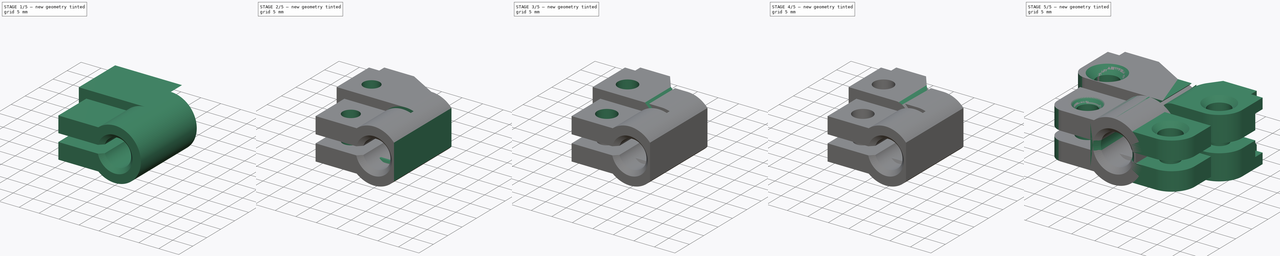
[diagram: build sequence overview — one tinted view per stage of 5, left to right]
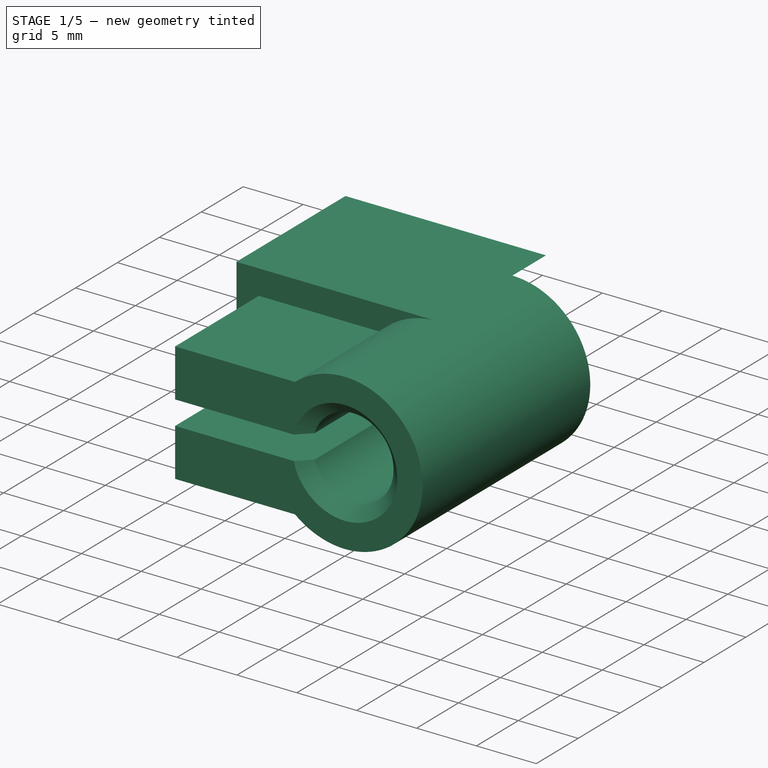
[diagram: stage 1 of 5 — iso view after this stage's code; geometry added in this stage tinted green]
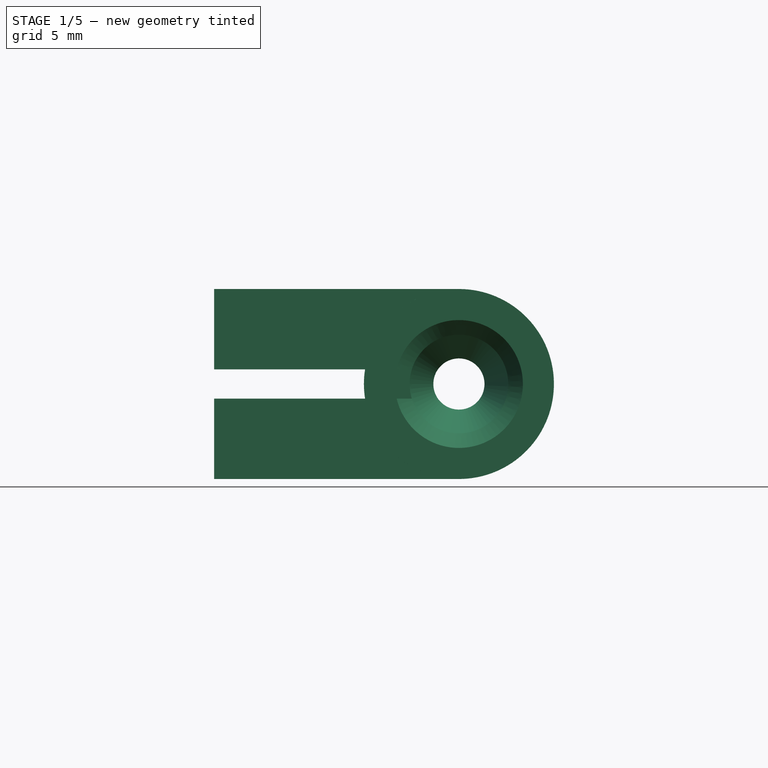
[diagram: stage 1 of 5 — front view after this stage's code; geometry added in this stage tinted green]
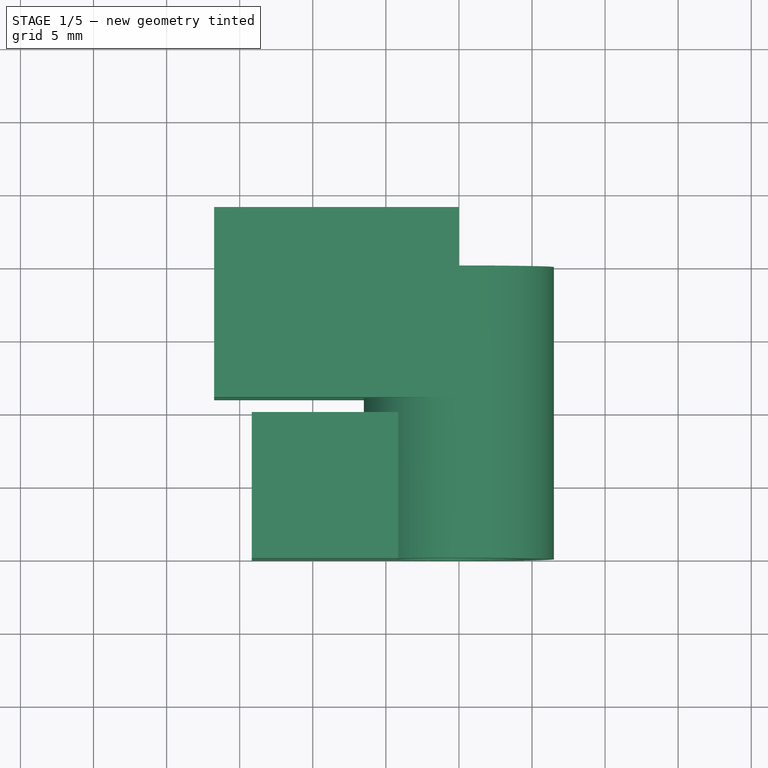
[diagram: stage 1 of 5 — top view after this stage's code; geometry added in this stage tinted green]
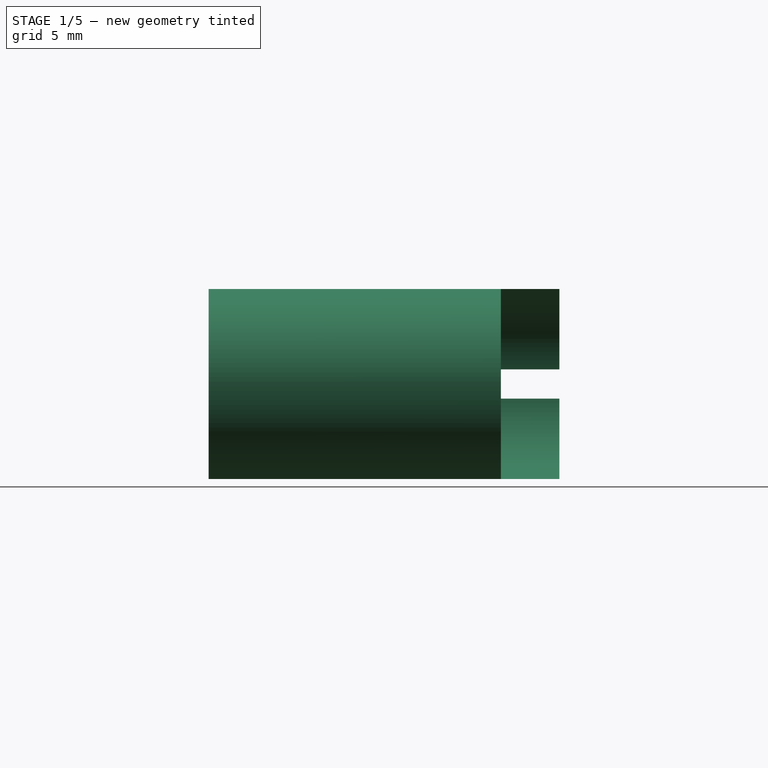
[diagram: stage 1 of 5 — right view after this stage's code; geometry added in this stage tinted green]
FCSTD DOCUMENT  (FreeCAD 0.17R13662 (Git))
Label: idler_tube_clamp_right
License: CreativeCommons Attribution-ShareAlike
LicenseURL: http://creativecommons.org/licenses/by-sa/4.0/
objects: Sketcher::SketchObject×14, PartDesign::Pocket×10, PartDesign::Fillet×4, PartDesign::Pad×3, Part::FeaturePython×1, PartDesign::Revolution×1, PartDesign::Chamfer×1, PartDesign::Body×1, Part::Mirroring×1
note: 50 computed .brp shape members not serialized (recipe doc carries the construction recipe); baked Part::Feature solids carry a one-line shape summary decoded from their .brp

FEATURE [Sketcher::SketchObject] Sketch
  MapMode = 5
  Support = -> [XY_Plane]
  sketch-geometry (6):
    g0: LineSegment StartX=-1.75 StartY=20 StartZ=0 EndX=-3.375 EndY=13 EndZ=0
    g1: LineSegment StartX=-3.375 StartY=13 StartZ=0 EndX=-3.375 EndY=1 EndZ=0
    g2: LineSegment StartX=-3.375 StartY=1 StartZ=0 EndX=-4.375 EndY=0 EndZ=0
    g3: LineSegment StartX=-4.375 StartY=0 StartZ=0 EndX=-6.5 EndY=0 EndZ=0
    g4: LineSegment StartX=-6.5 StartY=0 StartZ=0 EndX=-6.5 EndY=20 EndZ=0
    g5: LineSegment StartX=-6.5 StartY=20 StartZ=0 EndX=-1.75 EndY=20 EndZ=0
  constraints (18):
    c: Coincident(g0,g1)
    c: Coincident(g1,g2)
    c: Coincident(g2,g3)
    c: Coincident(g3,g4)
    c: Coincident(g4,g5)
    c: Coincident(g0,g5)
    c: PointOnObject(g2,g-1)
    c: Horizontal(g3)
    c: Vertical(g4)
    c: DistanceX(g3) = -6.5
    c: Horizontal(g5)
    c: Vertical(g1)
    c: DistanceY(g2,g2) = 1
    c: DistanceX(g3,g3) = 2.125
    c: DistanceX(g2,g2) = 1
    c: DistanceY(g1,g1) = 12
    c: DistanceY(g0) = 20
    c: DistanceX(g5,g5) = 4.75
FEATURE [PartDesign::Revolution] Revolution
  Angle = 360
  Axis = (0,1,0)
  Base = (0,0,0)
  Profile = -> Sketch
  ReferenceAxis = -> Sketch [V_Axis]
FEATURE [Sketcher::SketchObject] Sketch001
  MapMode = 5
  Placement = pos=(0,0,0) rot=(1,0,0;1.5708rad)
  Support = -> [Revolution]
  sketch-geometry (4):
    g0: LineSegment StartX=-6.75 StartY=1 StartZ=0 EndX=0 EndY=1 EndZ=0
    g1: LineSegment StartX=0 StartY=1 StartZ=0 EndX=0 EndY=-1 EndZ=0
    g2: LineSegment StartX=0 StartY=-1 StartZ=0 EndX=-6.75 EndY=-1 EndZ=0
    g3: LineSegment StartX=-6.75 StartY=-1 StartZ=0 EndX=-6.75 EndY=1 EndZ=0
  constraints (12):
    c: Coincident(g0,g1)
    c: Coincident(g1,g2)
    c: Coincident(g2,g3)
    c: Coincident(g3,g0)
    c: Horizontal(g0)
    c: Horizontal(g2)
    c: Vertical(g1)
    c: Vertical(g3)
    c: PointOnObject(g1,g-2)
    c: DistanceY(g1) = -1
    c: DistanceY(g1,g1) = 2
    c: DistanceX(g0,g0) = 6.75
FEATURE [PartDesign::Pocket] Pocket
  BaseFeature = -> Revolution
  Length = 10
  Length2 = 100
  Profile = -> Sketch001
  Type = 0
FEATURE [Sketcher::SketchObject] Sketch002
  ExternalGeometry = -> [Pocket]
  MapMode = 5
  Placement = pos=(0,0,0) rot=(1,0,0;1.5708rad)
  Support = -> [Pocket]
  sketch-geometry (8):
    g0: LineSegment StartX=-6.42262 StartY=1 StartZ=0 EndX=-14.1726 EndY=1 EndZ=0
    g1: LineSegment StartX=-14.1726 StartY=1 StartZ=0 EndX=-14.1726 EndY=5 EndZ=0
    g2: LineSegment StartX=-14.1726 StartY=5 StartZ=0 EndX=-4.15331 EndY=5 EndZ=0
    g3: LineSegment StartX=-6.42262 StartY=-1 StartZ=0 EndX=-14.1726 EndY=-1 EndZ=0
    g4: LineSegment StartX=-14.1726 StartY=-1 StartZ=0 EndX=-14.1726 EndY=-5 EndZ=0
    g5: LineSegment StartX=-14.1726 StartY=-5 StartZ=0 EndX=-4.15331 EndY=-5 EndZ=0
    g6: ArcOfCircle CenterX=0 CenterY=0 CenterZ=0 NormalX=0 NormalY=0 NormalZ=1 AngleXU=0 Radius=6.5 StartAngle=2.26396 EndAngle=2.98713
    g7: ArcOfCircle CenterX=0 CenterY=0 CenterZ=0 NormalX=0 NormalY=0 NormalZ=1 AngleXU=0 Radius=6.5 StartAngle=3.29605 EndAngle=4.01923
  constraints (25):
    c: Coincident(g0,g1)
    c: Coincident(g1,g2)
    c: Coincident(g3,g4)
    c: Coincident(g4,g5)
    c: Coincident(g3,g-3)
    c: Coincident(g0,g-3)
    c: Horizontal(g0)
    c: Horizontal(g3)
    c: Horizontal(g5)
    c: Horizontal(g2)
    c: PointOnObject(g5,g-3)
    c: PointOnObject(g2,g-3)
    c: Coincident(g5,g7)
    c: Coincident(g3,g7)
    c: Coincident(g0,g6)
    c: Coincident(g2,g6)
    c: Coincident(g6,g7)
    c: Coincident(g6,g-3)
    c: Coincident(g6,g-1)
    c: DistanceX(g0,g0) = 7.75
    c: Equal(g3,g0)
    c: DistanceY(g1,g1) = 4
    c: Vertical(g4)
    c: Equal(g4,g1)
    c: DistanceY(g4,g4) = 4
FEATURE [PartDesign::Pad] Pad
  BaseFeature = -> Pocket
  Length = 10
  Length2 = 100
  Profile = -> Sketch002
  Reversed = true
  Type = 0
FEATURE [Sketcher::SketchObject] Sketch003
  ExternalGeometry = -> [Pad]
  MapMode = 5
  Placement = pos=(0,20,0) rot=(0,0.707107,0.707107;3.14159rad)
  Support = -> [Pad]
  sketch-geometry (8):
    g0: LineSegment StartX=0 StartY=6.5 StartZ=0 EndX=16.75 EndY=6.5 EndZ=0
    g1: LineSegment StartX=16.75 StartY=6.5 StartZ=0 EndX=16.75 EndY=1 EndZ=0
    g2: LineSegment StartX=16.75 StartY=1 StartZ=0 EndX=6.42262 EndY=1 EndZ=0
    g3: LineSegment StartX=16.75 StartY=-1 StartZ=0 EndX=6.42262 EndY=-1 EndZ=0
    g4: LineSegment StartX=0 StartY=-6.5 StartZ=0 EndX=16.75 EndY=-6.5 EndZ=0
    g5: LineSegment StartX=16.75 StartY=-6.5 StartZ=0 EndX=16.75 EndY=-1 EndZ=0
    g6: ArcOfCircle CenterX=0 CenterY=0 CenterZ=0 NormalX=0 NormalY=0 NormalZ=1 AngleXU=0 Radius=6.5 StartAngle=0.15446 EndAngle=1.5708
    g7: ArcOfCircle CenterX=0 CenterY=0 CenterZ=0 NormalX=0 NormalY=0 NormalZ=1 AngleXU=0 Radius=6.5 StartAngle=4.71239 EndAngle=6.12873
  constraints (26):
    c: Coincident(g0,g1)
    c: Coincident(g1,g2)
    c: Horizontal(g0)
    c: Horizontal(g2)
    c: Vertical(g1)
    c: Coincident(g4,g5)
    c: Coincident(g5,g3)
    c: Horizontal(g3)
    c: Horizontal(g4)
    c: Vertical(g5)
    c: PointOnObject(g4,g-3)
    c: PointOnObject(g4,g-2)
    c: PointOnObject(g0,g-3)
    c: PointOnObject(g0,g-2)
    c: Coincident(g6,g7)
    c: Coincident(g6,g-3)
    c: Coincident(g4,g7)
    c: Coincident(g0,g6)
    c: Coincident(g2,g6)
    c: Coincident(g3,g7)
    c: Equal(g7,g-3)
    c: Equal(g6,g-3)
    c: DistanceX(g0,g0) = 16.75
    c: Equal(g4,g0)
    c: DistanceY(g5,g5) = 5.5
    c: Equal(g1,g5)
FEATURE [PartDesign::Pad] Pad001
  BaseFeature = -> Pad
  Length = 4
  Length2 = 9
  Profile = -> Sketch003
  Type = 4
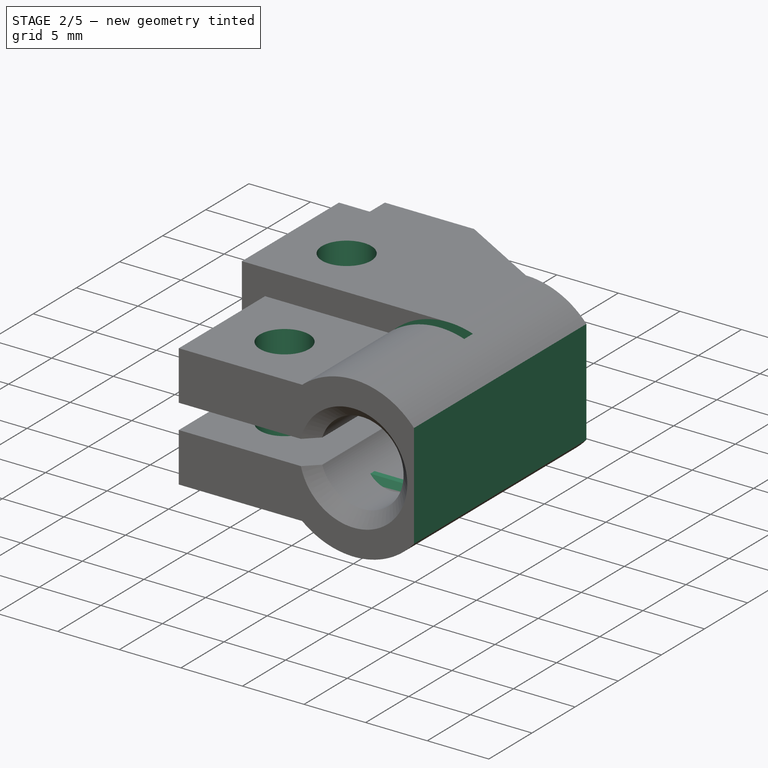
[diagram: stage 2 of 5 — iso view after this stage's code; geometry added in this stage tinted green]
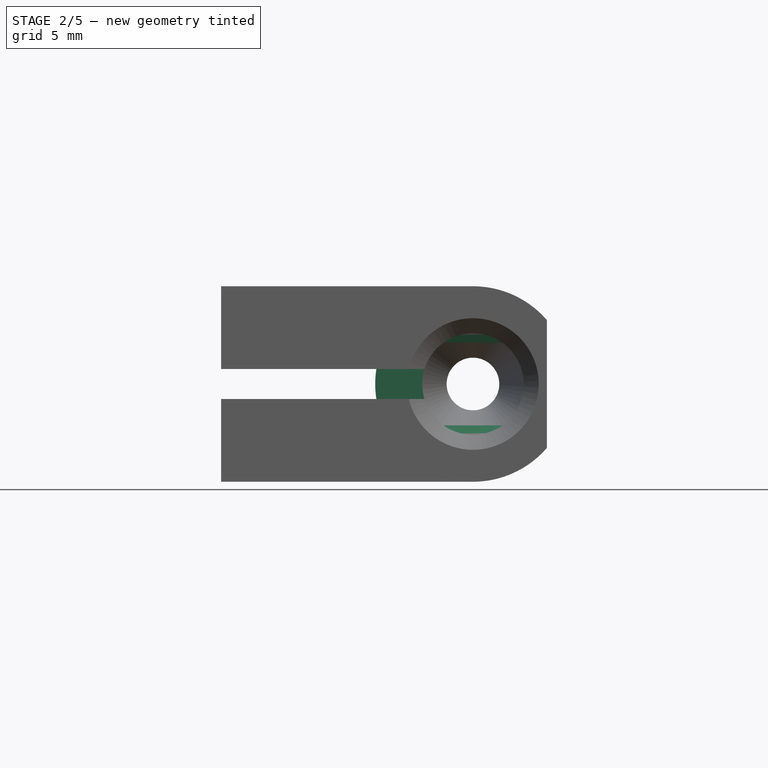
[diagram: stage 2 of 5 — front view after this stage's code; geometry added in this stage tinted green]
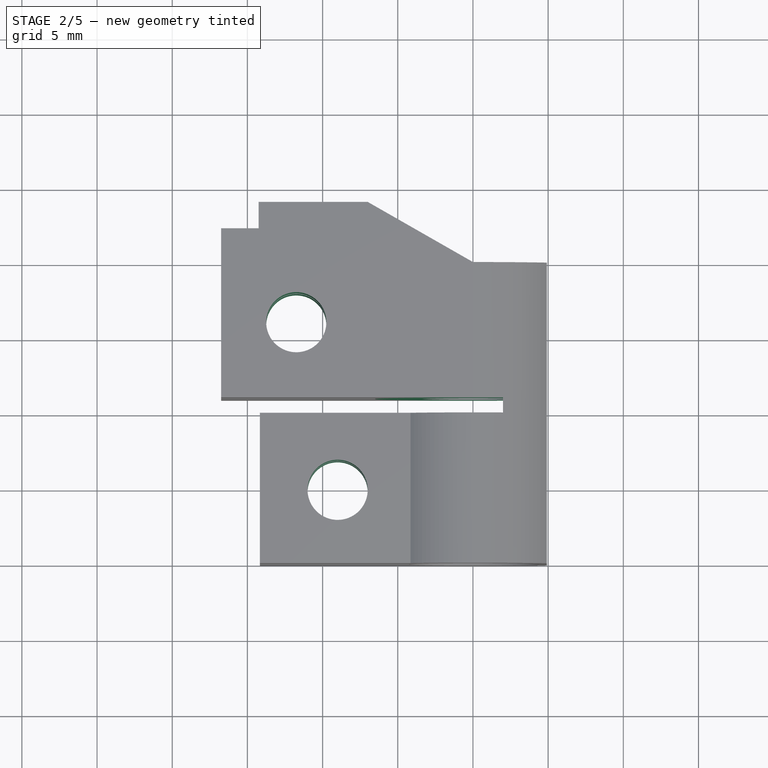
[diagram: stage 2 of 5 — top view after this stage's code; geometry added in this stage tinted green]
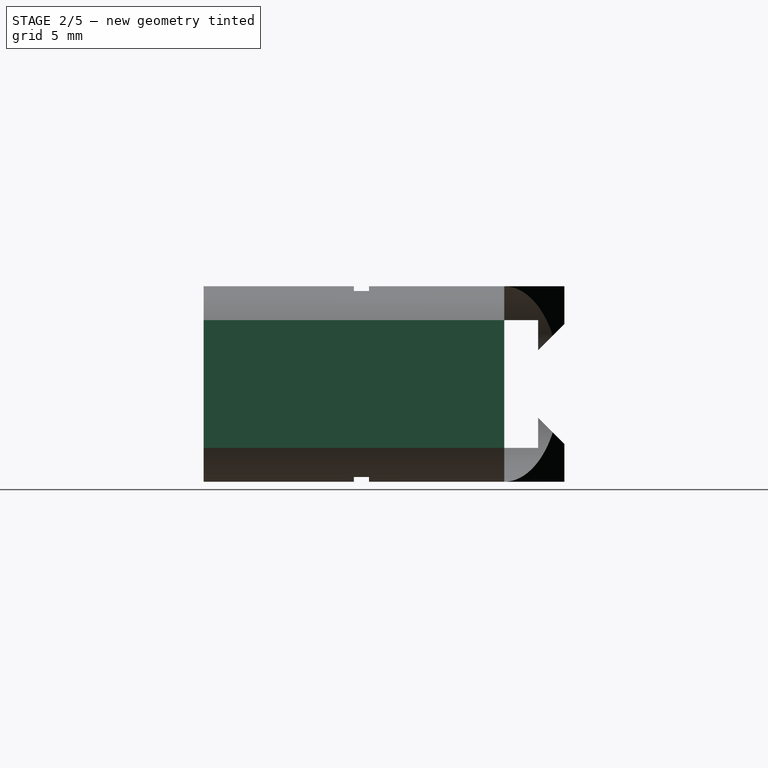
[diagram: stage 2 of 5 — right view after this stage's code; geometry added in this stage tinted green]
FEATURE [Sketcher::SketchObject] Sketch004
  MapMode = 5
  Placement = pos=(0,0,-6.5) rot=(1,0,0;3.14159rad)
  Support = -> [Pad001]
  sketch-geometry (13):
    g0: LineSegment StartX=0 StartY=-20 StartZ=0 EndX=-7 EndY=-24 EndZ=0
    g1: LineSegment StartX=-7 StartY=-24 StartZ=0 EndX=0 EndY=-24 EndZ=0
    g2: LineSegment StartX=0 StartY=-24 StartZ=0 EndX=0 EndY=-20 EndZ=0
    g3: Circle CenterX=-11.75 CenterY=-16 CenterZ=0 NormalX=0 NormalY=0 NormalZ=1 AngleXU=0 Radius=2
    g4: Circle CenterX=-9 CenterY=-4.875 CenterZ=0 NormalX=0 NormalY=0 NormalZ=1 AngleXU=0 Radius=2
    g5: LineSegment StartX=-16.75 StartY=-24 StartZ=0 EndX=-14.25 EndY=-24 EndZ=0
    g6: LineSegment StartX=-14.25 StartY=-24 StartZ=0 EndX=-14.25 EndY=-22.25 EndZ=0
    g7: LineSegment StartX=-14.25 StartY=-22.25 StartZ=0 EndX=-16.75 EndY=-22.25 EndZ=0
    g8: LineSegment StartX=-16.75 StartY=-22.25 StartZ=0 EndX=-16.75 EndY=-24 EndZ=0
    g9: LineSegment StartX=-6.5 StartY=-10 StartZ=0 EndX=2 EndY=-10 EndZ=0
    g10: LineSegment StartX=2 StartY=-10 StartZ=0 EndX=2 EndY=-11 EndZ=0
    g11: LineSegment StartX=2 StartY=-11 StartZ=0 EndX=-6.5 EndY=-11 EndZ=0
    g12: LineSegment StartX=-6.5 StartY=-11 StartZ=0 EndX=-6.5 EndY=-10 EndZ=0
  constraints (39):
    c: Coincident(g0,g1)
    c: Coincident(g1,g2)
    c: Coincident(g2,g0)
    c: Coincident(g5,g6)
    c: Coincident(g6,g7)
    c: Coincident(g7,g8)
    c: Coincident(g8,g5)
    c: Horizontal(g5)
    c: Horizontal(g7)
    c: Vertical(g6)
    c: Vertical(g8)
    c: DistanceX(g5) = -16.75
    c: DistanceY(g5) = -24
    c: DistanceY(g8,g8) = 1.75
    c: DistanceX(g7,g7) = 2.5
    c: DistanceX(g3) = -11.75
    c: DistanceY(g3) = -16
    c: DistanceX(g4) = -9
    c: DistanceY(g4) = -4.875
    c: Radius(g4) = 2
    c: Equal(g3,g4)
    c: PointOnObject(g0,g-2)
    c: Vertical(g2)
    c: Horizontal(g1)
    c: DistanceY(g0) = -20
    c: DistanceY(g2,g2) = 4
    c: DistanceX(g1,g1) = 7
    c: Coincident(g9,g10)
    c: Coincident(g10,g11)
    c: Coincident(g11,g12)
    c: Coincident(g12,g9)
    c: Horizontal(g9)
    c: Horizontal(g11)
    c: Vertical(g10)
    c: Vertical(g12)
    c: DistanceX(g10) = 2
    c: DistanceY(g10) = -11
    c: DistanceY(g12,g12) = 1
    c: DistanceX(g9,g9) = 8.5
FEATURE [PartDesign::Pocket] Pocket001
  BaseFeature = -> Pad001
  Length = 5
  Length2 = 100
  Profile = -> Sketch004
  Type = 1
FEATURE [Sketcher::SketchObject] Sketch005
  MapMode = 5
  Placement = pos=(-16.75,0,0) rot=(0.57735,-0.57735,-0.57735;2.0944rad)
  Support = -> [Pocket001]
  sketch-geometry (8):
    g0: LineSegment StartX=-24 StartY=4 StartZ=0 EndX=-22.25 EndY=2.25 EndZ=0
    g1: LineSegment StartX=-22.25 StartY=2.25 StartZ=0 EndX=-22.25 EndY=4.25 EndZ=0
    g2: LineSegment StartX=-22.25 StartY=4.25 StartZ=0 EndX=-20 EndY=4.25 EndZ=0
    g3: LineSegment StartX=-20 StartY=4.25 StartZ=0 EndX=-20 EndY=-4.25 EndZ=0
    g4: LineSegment StartX=-20 StartY=-4.25 StartZ=0 EndX=-22.25 EndY=-4.25 EndZ=0
    g5: LineSegment StartX=-22.25 StartY=-4.25 StartZ=0 EndX=-22.25 EndY=-2.25 EndZ=0
    g6: LineSegment StartX=-22.25 StartY=-2.25 StartZ=0 EndX=-24 EndY=-4 EndZ=0
    g7: LineSegment StartX=-24 StartY=-4 StartZ=0 EndX=-24 EndY=4 EndZ=0
  constraints (24):
    c: Coincident(g0,g1)
    c: Coincident(g1,g2)
    c: Coincident(g2,g3)
    c: Coincident(g3,g4)
    c: Coincident(g4,g5)
    c: Coincident(g5,g6)
    c: Coincident(g6,g7)
    c: Coincident(g0,g7)
    c: Vertical(g7)
    c: Vertical(g1)
    c: Vertical(g3)
    c: Vertical(g5)
    c: Horizontal(g4)
    c: Horizontal(g2)
    c: Angle(g6) = -2.35619
    c: Angle(g0) = -0.785398
    c: DistanceX(g2) = -20
    c: DistanceY(g2) = 4.25
    c: DistanceX(g2,g2) = 2.25
    c: Equal(g1,g5)
    c: Equal(g4,g2)
    c: DistanceY(g1,g1) = 2
    c: DistanceY(g3) = -4.25
    c: DistanceX(g6,g6) = 1.75
FEATURE [PartDesign::Pocket] Pocket002
  BaseFeature = -> Pocket001
  Length = 5
  Length2 = 100
  Profile = -> Sketch005
  Type = 1
FEATURE [Sketcher::SketchObject] Sketch006
  ExternalGeometry = -> [Pocket002]
  MapMode = 5
  Placement = pos=(0,0,0) rot=(1,0,0;1.5708rad)
  Support = -> [Pocket002]
  sketch-geometry (4):
    g0: LineSegment StartX=4.91808 StartY=4.25 StartZ=0 EndX=6.5 EndY=4.25 EndZ=0
    g1: LineSegment StartX=6.5 StartY=4.25 StartZ=0 EndX=6.5 EndY=-4.25 EndZ=0
    g2: LineSegment StartX=6.5 StartY=-4.25 StartZ=0 EndX=4.91808 EndY=-4.25 EndZ=0
    g3: LineSegment StartX=4.91808 StartY=-4.25 StartZ=0 EndX=4.91808 EndY=4.25 EndZ=0
  constraints (12):
    c: Coincident(g0,g1)
    c: Coincident(g1,g2)
    c: Coincident(g2,g3)
    c: Coincident(g3,g0)
    c: Horizontal(g0)
    c: Horizontal(g2)
    c: Vertical(g1)
    c: Vertical(g3)
    c: PointOnObject(g2,g-3)
    c: PointOnObject(g0,g-3)
    c: DistanceY(g3,g3) = 8.5
    c: Tangent(g-3,g1)
FEATURE [PartDesign::Pocket] Pocket003
  BaseFeature = -> Pocket002
  Length = 5
  Length2 = 100
  Profile = -> Sketch006
  Type = 1
FEATURE [Sketcher::SketchObject] Sketch007
  MapMode = 5
  Placement = pos=(4.91808,0,0) rot=(0.57735,0.57735,0.57735;2.0944rad)
  Support = -> [Pocket003]
  sketch-geometry (16):
    g0: LineSegment StartX=2 StartY=4.25 StartZ=0 EndX=4 EndY=4.25 EndZ=0
    g1: LineSegment StartX=4 StartY=4.25 StartZ=0 EndX=3.25 EndY=2.75 EndZ=0
    g2: LineSegment StartX=3.25 StartY=2.75 StartZ=0 EndX=2.75 EndY=2.75 EndZ=0
    g3: LineSegment StartX=2.75 StartY=2.75 StartZ=0 EndX=2 EndY=4.25 EndZ=0
    g4: LineSegment StartX=6 StartY=4.25 StartZ=0 EndX=6.75 EndY=2.75 EndZ=0
    g5: LineSegment StartX=6.75 StartY=2.75 StartZ=0 EndX=7.25 EndY=2.75 EndZ=0
    g6: LineSegment StartX=7.25 StartY=2.75 StartZ=0 EndX=8 EndY=4.25 EndZ=0
    g7: LineSegment StartX=8 StartY=4.25 StartZ=0 EndX=6 EndY=4.25 EndZ=0
    g8: LineSegment StartX=4 StartY=-4.25 StartZ=0 EndX=4.75 EndY=-2.75 EndZ=0
    g9: LineSegment StartX=4.75 StartY=-2.75 StartZ=0 EndX=5.25 EndY=-2.75 EndZ=0
    g10: LineSegment StartX=5.25 StartY=-2.75 StartZ=0 EndX=6 EndY=-4.25 EndZ=0
    g11: LineSegment StartX=6 StartY=-4.25 StartZ=0 EndX=4 EndY=-4.25 EndZ=0
    g12: LineSegment [constr] StartX=4 StartY=4.25 StartZ=0 EndX=6 EndY=4.25 EndZ=0
    g13: LineSegment [constr] StartX=6 StartY=4.25 StartZ=0 EndX=6 EndY=-4.25 EndZ=0
    g14: LineSegment [constr] StartX=6 StartY=-4.25 StartZ=0 EndX=4 EndY=-4.25 EndZ=0
    g15: LineSegment [constr] StartX=4 StartY=-4.25 StartZ=0 EndX=4 EndY=4.25 EndZ=0
  constraints (45):
    c: Coincident(g0,g1)
    c: Coincident(g1,g2)
    c: Coincident(g2,g3)
    c: Coincident(g4,g5)
    c: Coincident(g5,g6)
    c: Coincident(g6,g7)
    c: Coincident(g7,g4)
    c: Coincident(g8,g9)
    c: Coincident(g9,g10)
    c: Coincident(g10,g11)
    c: Coincident(g8,g11)
    c: Coincident(g0,g3)
    c: Horizontal(g7)
    c: Horizontal(g0)
    c: Horizontal(g2)
    c: Horizontal(g5)
    c: Horizontal(g9)
    c: Horizontal(g11)
    c: Coincident(g12,g13)
    c: Coincident(g13,g14)
    c: Coincident(g14,g15)
    c: Coincident(g15,g12)
    c: Horizontal(g12)
    c: Horizontal(g14)
    c: Vertical(g13)
    c: Vertical(g15)
    c: Coincident(g10,g13)
    c: Coincident(g8,g14)
    c: Coincident(g4,g12)
    c: DistanceY(g0) = 4.25
    c: DistanceY(g8) = -4.25
    c: Equal(g0,g7)
    c: Equal(g7,g11)
    c: Equal(g9,g2)
    c: Equal(g2,g5)
    c: Equal(g4,g1)
    c: Equal(g1,g3)
    c: Equal(g3,g6)
    c: Equal(g6,g10)
    c: Equal(g10,g8)
    c: DistanceY(g8,g8) = 1.5
    c: DistanceX(g9,g9) = 0.5
    c: Coincident(g0,g12)
    c: DistanceX(g0) = 2
    c: DistanceX(g12,g12) = 2
FEATURE [PartDesign::Pad] Pad002
  BaseFeature = -> Pocket003
  Length = 10
  Length2 = 100
  Profile = -> Sketch007
  Reversed = true
  Type = 0
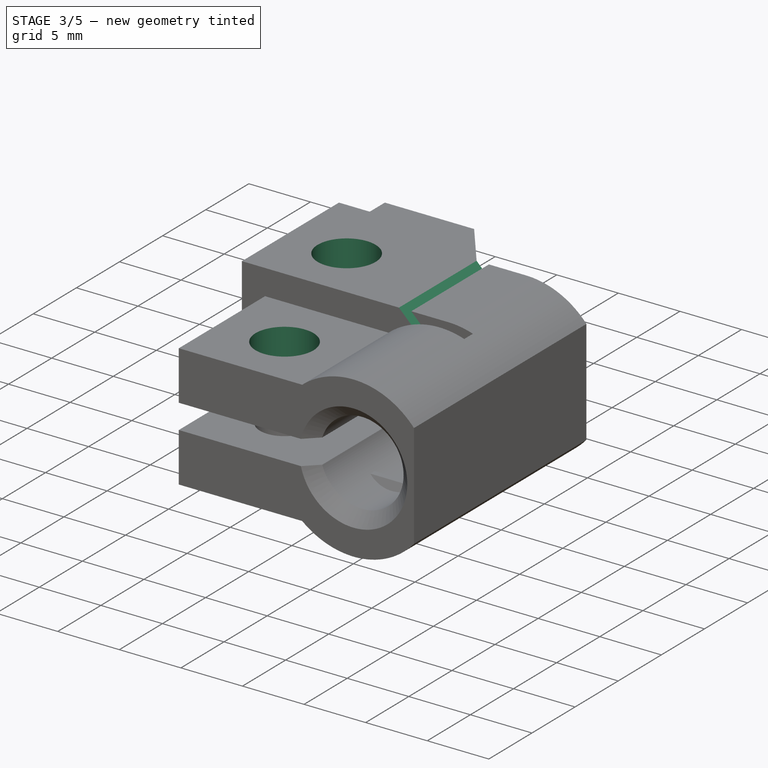
[diagram: stage 3 of 5 — iso view after this stage's code; geometry added in this stage tinted green]
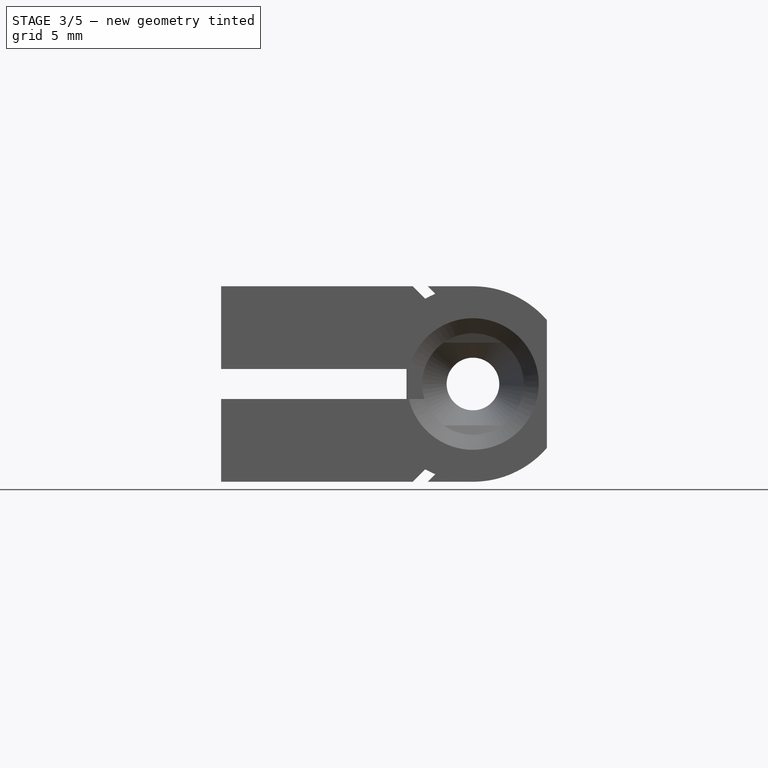
[diagram: stage 3 of 5 — front view after this stage's code; geometry added in this stage tinted green]
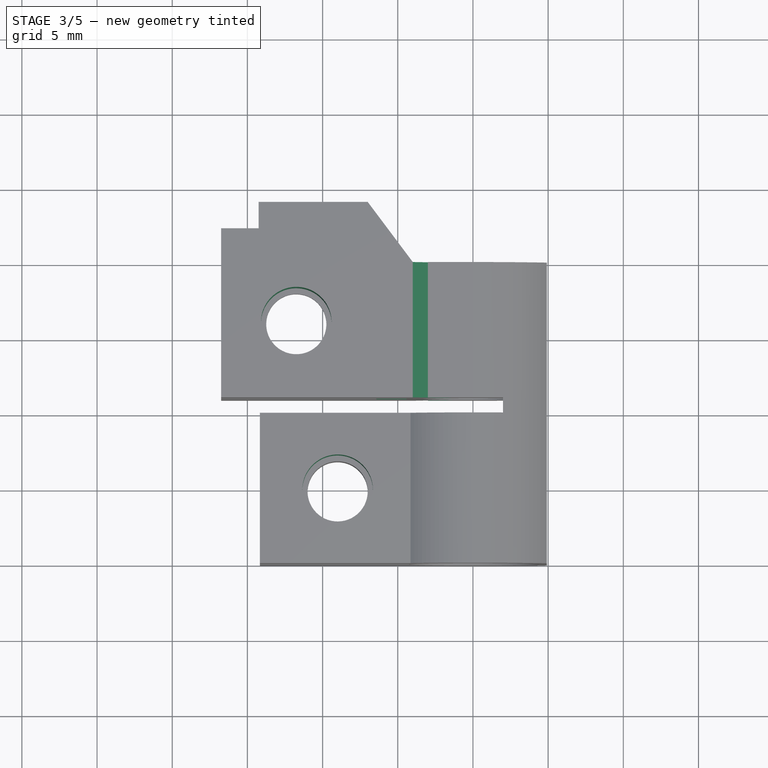
[diagram: stage 3 of 5 — top view after this stage's code; geometry added in this stage tinted green]
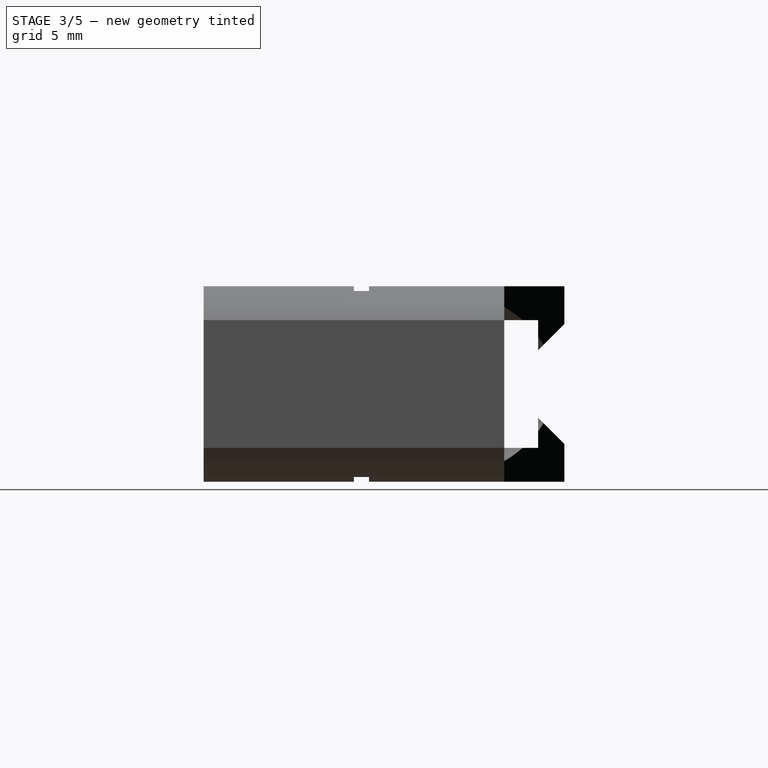
[diagram: stage 3 of 5 — right view after this stage's code; geometry added in this stage tinted green]
FEATURE [Sketcher::SketchObject] Sketch008
  ExternalGeometry = -> [Pad002]
  MapMode = 5
  Placement = pos=(0,0,5) rot=(0,0,1;0rad)
  Support = -> [Pad002]
  sketch-geometry (1):
    g0: Circle CenterX=-9 CenterY=4.875 CenterZ=0 NormalX=0 NormalY=0 NormalZ=1 AngleXU=0 Radius=2.35
  constraints (2):
    c: Coincident(g0,g-3)
    c: Radius(g0) = 2.35
FEATURE [PartDesign::Pocket] Pocket004
  BaseFeature = -> Pad002
  Length = 5
  Length2 = 100
  Profile = -> Sketch008
  Type = 0
FEATURE [Sketcher::SketchObject] Sketch009
  ExternalGeometry = -> [Pocket004]
  MapMode = 5
  Placement = pos=(0,0,6.5) rot=(0,0,1;0rad)
  Support = -> [Pocket004]
  sketch-geometry (1):
    g0: Circle CenterX=-11.75 CenterY=16 CenterZ=0 NormalX=0 NormalY=0 NormalZ=1 AngleXU=0 Radius=2.35
  constraints (2):
    c: Radius(g0) = 2.35
    c: Coincident(g0,g-3)
FEATURE [Sketcher::SketchObject] Sketch011
  ExternalGeometry = -> [Pocket001]
  MapMode = 5
  Placement = pos=(0,11,0) rot=(1,0,0;1.5708rad)
  sketch-geometry (14):
    g0: LineSegment StartX=-6.42262 StartY=1 StartZ=0 EndX=-4.42262 EndY=1 EndZ=0
    g1: LineSegment StartX=-4.42262 StartY=1 StartZ=0 EndX=-4.42262 EndY=-1 EndZ=0
    g2: LineSegment StartX=-4.42262 StartY=-1 StartZ=0 EndX=-6.42262 EndY=-1 EndZ=0
    g3: ArcOfCircle CenterX=0 CenterY=0 CenterZ=0 NormalX=0 NormalY=0 NormalZ=1 AngleXU=0 Radius=6.5 StartAngle=2.98713 EndAngle=3.29605
    g4: LineSegment [constr] StartX=3 StartY=0 StartZ=0 EndX=-3.5 EndY=6.5 EndZ=0
    g5: LineSegment [constr] StartX=3 StartY=0 StartZ=0 EndX=-3.5 EndY=-6.5 EndZ=0
    g6: LineSegment StartX=-4 StartY=6.5 StartZ=0 EndX=-1.80294 EndY=4.30294 EndZ=0
    g7: LineSegment StartX=-1.80294 StartY=4.30294 StartZ=0 EndX=-1.30294 EndY=4.80294 EndZ=0
    g8: LineSegment StartX=-1.30294 StartY=4.80294 StartZ=0 EndX=-3 EndY=6.5 EndZ=0
    g9: LineSegment StartX=-3 StartY=6.5 StartZ=0 EndX=-4 EndY=6.5 EndZ=0
    g10: LineSegment StartX=-1.80294 StartY=-4.30294 StartZ=0 EndX=-1.30294 EndY=-4.80294 EndZ=0
    g11: LineSegment StartX=-1.30294 StartY=-4.80294 StartZ=0 EndX=-3 EndY=-6.5 EndZ=0
    g12: LineSegment StartX=-3 StartY=-6.5 StartZ=0 EndX=-4 EndY=-6.5 EndZ=0
    g13: LineSegment StartX=-4 StartY=-6.5 StartZ=0 EndX=-1.80294 EndY=-4.30294 EndZ=0
  constraints (43):
    c: Coincident(g0,g1)
    c: Coincident(g1,g2)
    c: Horizontal(g0)
    c: Horizontal(g2)
    c: Vertical(g1)
    c: Coincident(g2,g-6)
    c: Coincident(g0,g-5)
    c: DistanceX(g0,g0) = 2
    c: Coincident(g3,g-3)
    c: Coincident(g0,g3)
    c: Coincident(g0,g-4)
    c: Coincident(g2,g3)
    c: Coincident(g4,g5)
    c: PointOnObject(g4,g-1)
    c: Coincident(g6,g7)
    c: Coincident(g7,g8)
    c: Coincident(g8,g9)
    c: Coincident(g10,g11)
    c: Coincident(g11,g12)
    c: Coincident(g12,g13)
    c: Coincident(g10,g13)
    c: Coincident(g6,g9)
    c: PointOnObject(g12,g-8)
    c: Horizontal(g12)
    c: Horizontal(g9)
    c: PointOnObject(g6,g-7)
    c: DistanceX(g4) = 3
    c: PointOnObject(g4,g9)
    c: PointOnObject(g5,g12)
    c: Angle(g5) = -2.35619
    c: Perpendicular(g5,g4)
    c: Perpendicular(g8,g7)
    c: Perpendicular(g4,g7)
    c: Symmetric(g7,g6,g4)
    c: Perpendicular(g5,g10)
    c: Symmetric(g10,g10,g5)
    c: Perpendicular(g10,g11)
    c: Parallel(g11,g13)
    c: Parallel(g6,g8)
    c: DistanceX(g9,g9) = 1
    c: Equal(g12,g9)
    c: Equal(g8,g11)
    c: Distance(g11) = 2.4
FEATURE [Sketcher::SketchObject] Sketch013
  MapMode = 5
  Placement = pos=(0,24,0) rot=(0,0.707107,0.707107;3.14159rad)
  sketch-geometry (10):
    g0: LineSegment StartX=5.6875 StartY=4.25 StartZ=0 EndX=7.6875 EndY=2.25 EndZ=0
    g1: LineSegment StartX=7.6875 StartY=2.25 StartZ=0 EndX=5.6875 EndY=2.25 EndZ=0
    g2: LineSegment StartX=5.6875 StartY=2.25 StartZ=0 EndX=5.6875 EndY=4.25 EndZ=0
    g3: LineSegment StartX=5.6875 StartY=-4.25 StartZ=0 EndX=5.6875 EndY=-2.25 EndZ=0
    g4: LineSegment StartX=5.6875 StartY=-2.25 StartZ=0 EndX=7.6875 EndY=-2.25 EndZ=0
    g5: LineSegment StartX=7.6875 StartY=-2.25 StartZ=0 EndX=5.6875 EndY=-4.25 EndZ=0
    g6: LineSegment [constr] StartX=5.6875 StartY=2.25 StartZ=0 EndX=7.6875 EndY=2.25 EndZ=0
    g7: LineSegment [constr] StartX=7.6875 StartY=2.25 StartZ=0 EndX=7.6875 EndY=-2.25 EndZ=0
    g8: LineSegment [constr] StartX=7.6875 StartY=-2.25 StartZ=0 EndX=5.6875 EndY=-2.25 EndZ=0
    g9: LineSegment [constr] StartX=5.6875 StartY=-2.25 StartZ=0 EndX=5.6875 EndY=2.25 EndZ=0
  constraints (30):
    c: Coincident(g0,g1)
    c: Coincident(g1,g2)
    c: Coincident(g3,g4)
    c: Coincident(g4,g5)
    c: Coincident(g3,g5)
    c: Coincident(g0,g2)
    c: Vertical(g2)
    c: Horizontal(g1)
    c: Vertical(g3)
    c: Angle(g5) = -2.35619
    c: Angle(g0) = -0.785398
    c: Coincident(g6,g7)
    c: Coincident(g7,g8)
    c: Coincident(g8,g9)
    c: Coincident(g9,g6)
    c: Horizontal(g6)
    c: Horizontal(g8)
    c: Vertical(g7)
    c: Vertical(g9)
    c: Coincident(g4,g7)
    c: Coincident(g1,g6)
    c: Coincident(g0,g6)
    c: Coincident(g3,g8)
    c: DistanceY(g3,g3) = 2
    c: Equal(g4,g1)
    c: Equal(g1,g2)
    c: Equal(g2,g3)
    c: DistanceX(g3) = 5.6875
    c: DistanceY(g3) = -4.25
    c: DistanceY(g7,g7) = 4.5
FEATURE [PartDesign::Pocket] Pocket005
  BaseFeature = -> Pocket004
  Length = 6
  Length2 = 100
  Profile = -> Sketch009
  Type = 0
FEATURE [Sketcher::SketchObject] Sketch010
  ExternalGeometry = -> [Pocket005]
  MapMode = 5
  Placement = pos=(0,0,-6.5) rot=(1,0,0;3.14159rad)
  Support = -> [Pocket005]
  sketch-geometry (1):
    g0: Circle CenterX=-11.75 CenterY=-16 CenterZ=0 NormalX=0 NormalY=0 NormalZ=1 AngleXU=0 Radius=3.5
  constraints (2):
    c: Radius(g0) = 3.5
    c: Coincident(g0,g-3)
FEATURE [PartDesign::Pocket] Pocket006
  BaseFeature = -> Pocket005
  Length = 4
  Length2 = 100
  Profile = -> Sketch010
  Type = 0
FEATURE [PartDesign::Pocket] Pocket007
  BaseFeature = -> Pocket006
  Length = 5
  Length2 = 100
  Profile = -> Sketch011
  Type = 1
FEATURE [Sketcher::SketchObject] Sketch012
  ExternalGeometry = -> [Pocket007]
  MapMode = 5
  Placement = pos=(0,0,-6.5) rot=(1,0,0;3.14159rad)
  sketch-geometry (3):
    g0: LineSegment StartX=0 StartY=-20 StartZ=0 EndX=-4 EndY=-20 EndZ=0
    g1: LineSegment StartX=-4 StartY=-20 StartZ=0 EndX=-7 EndY=-24 EndZ=0
    g2: LineSegment StartX=-7 StartY=-24 StartZ=0 EndX=0 EndY=-20 EndZ=0
  constraints (7):
    c: Coincident(g1,g2)
    c: Coincident(g0,g2)
    c: Coincident(g0,g1)
    c: Horizontal(g0)
    c: Coincident(g0,g-3)
    c: Coincident(g1,g-4)
    c: PointOnObject(g0,g-5)
FEATURE [PartDesign::Pocket] Pocket008
  BaseFeature = -> Pocket007
  Length = 5
  Length2 = 100
  Profile = -> Sketch012
  Type = 1
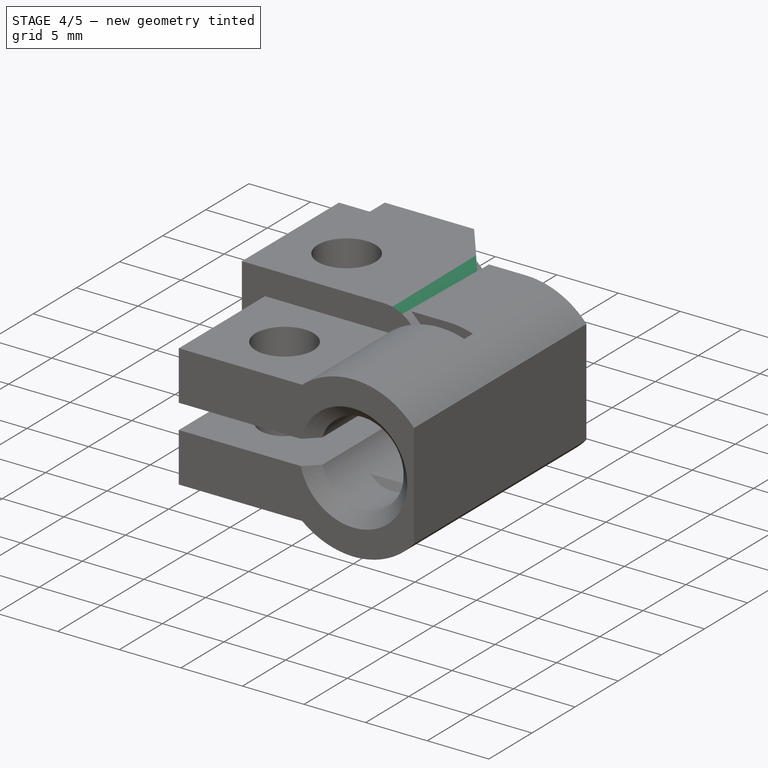
[diagram: stage 4 of 5 — iso view after this stage's code; geometry added in this stage tinted green]
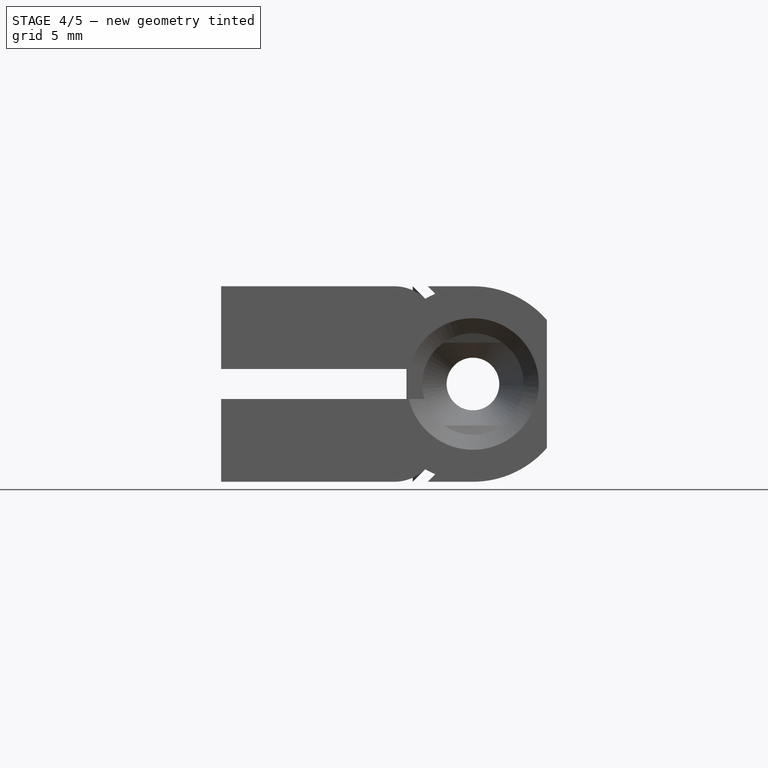
[diagram: stage 4 of 5 — front view after this stage's code; geometry added in this stage tinted green]
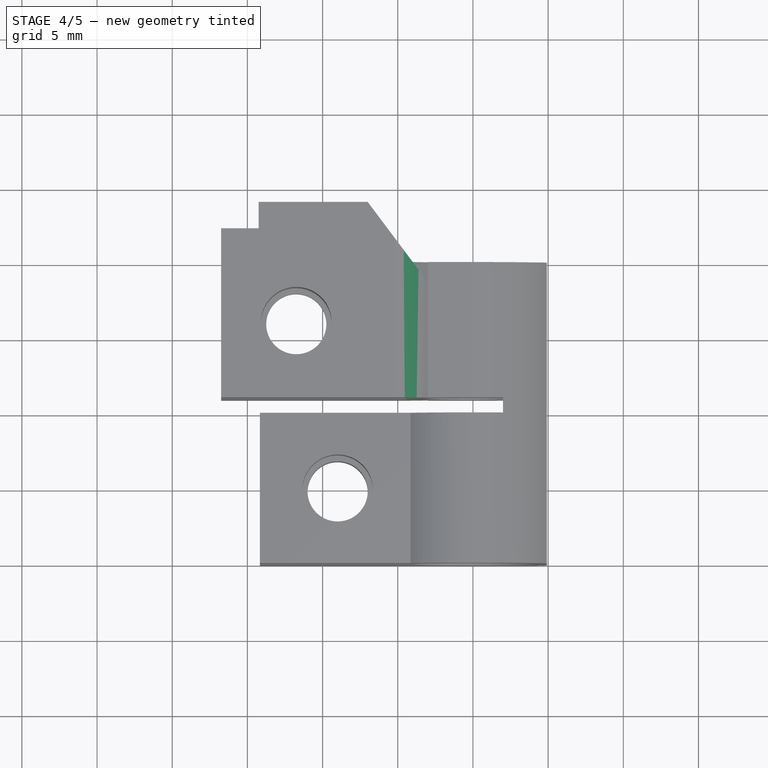
[diagram: stage 4 of 5 — top view after this stage's code; geometry added in this stage tinted green]
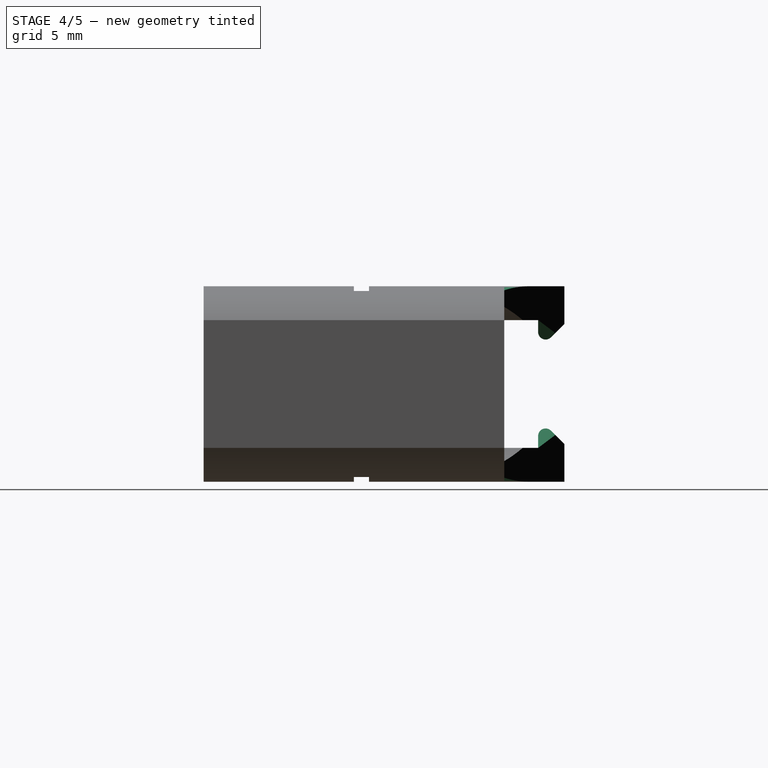
[diagram: stage 4 of 5 — right view after this stage's code; geometry added in this stage tinted green]
FEATURE [PartDesign::Pocket] Pocket009
  BaseFeature = -> Pocket008
  Length = 3
  Length2 = 100
  Profile = -> Sketch013
  Type = 0
FEATURE [PartDesign::Fillet] Fillet
  Base = -> Pocket009 [Edge130,Edge142]
  BaseFeature = -> Pocket009
  Radius = 0.7
FEATURE [PartDesign::Fillet] Fillet001
  Base = -> Fillet [Edge129,Edge13]
  BaseFeature = -> Fillet
  Radius = 3
FEATURE [PartDesign::Fillet] Fillet002
  Base = -> Fillet001 [Edge139,Edge264]
  BaseFeature = -> Fillet001
  Radius = 0.5
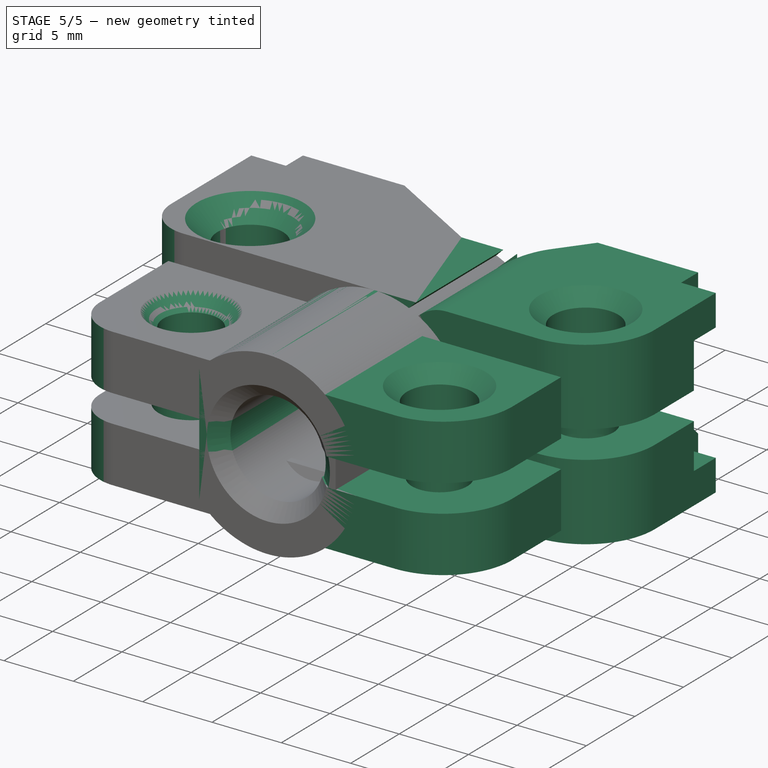
[diagram: stage 5 of 5 — iso view after this stage's code; geometry added in this stage tinted green]
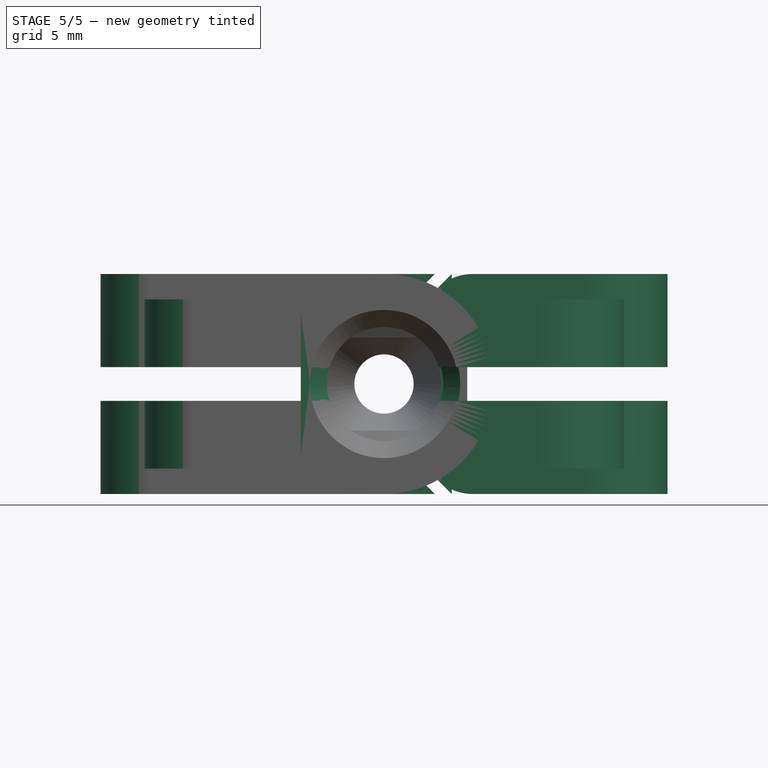
[diagram: stage 5 of 5 — front view after this stage's code; geometry added in this stage tinted green]
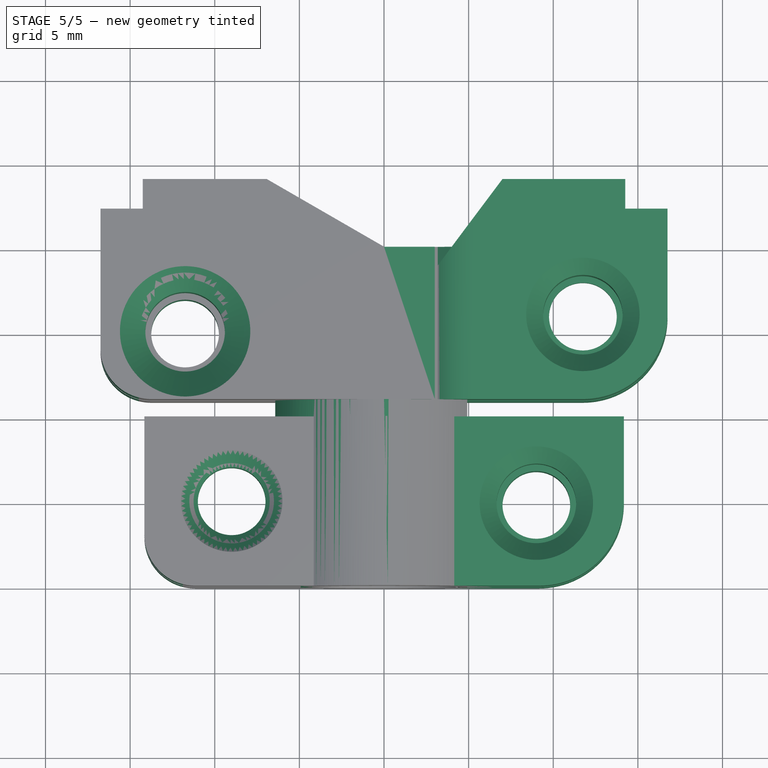
[diagram: stage 5 of 5 — top view after this stage's code; geometry added in this stage tinted green]
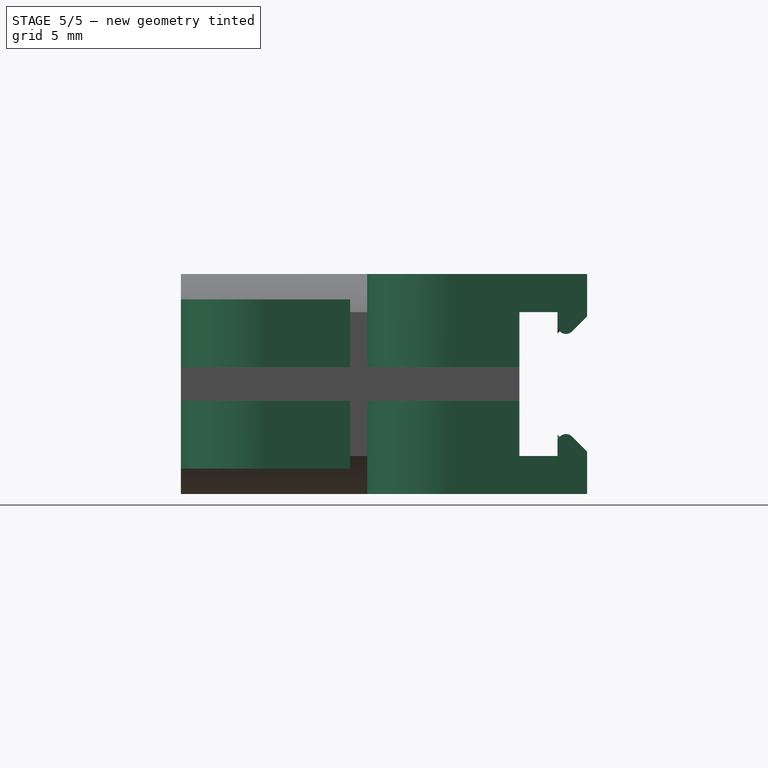
[diagram: stage 5 of 5 — right view after this stage's code; geometry added in this stage tinted green]
FEATURE [Part::FeaturePython] idler_clamp_right_01  # a2plus imported part (geometry in sourceFile) (typed FeaturePython)
  fixedPosition = true
  sourceFile = <userpath>/Projects/taz-quiver/production_parts/printed_parts/idler_clamp_bolt_side/idler_clamp_right.fcstd
  timeLastImport = 1.54526e+09
  updateColors = true
FEATURE [PartDesign::Fillet] Fillet003
  Base = -> Fillet002 [Edge78,Edge239,Edge248,Edge250]
  BaseFeature = -> Fillet002
  Radius = 5
FEATURE [PartDesign::Chamfer] Chamfer
  Base = -> Fillet003 [Edge243,Edge231]
  BaseFeature = -> Fillet003
  Size = 1
FEATURE [PartDesign::Body] Body
  Group = -> [Sketch,Revolution,Sketch001,Pocket,Sketch002,Pad,Sketch003,Pad001,Sketch004,Pocket001,Sketch005,Pocket002,Sketch006,Pocket003,Sketch007,Pad002,Sketch008,Pocket004,Sketch009,Sketch010,Sketch011,Sketch012,Sketch013,Pocket005,Pocket006,Pocket007,Pocket008,Pocket009,Fillet,Fillet001,Fillet002,Fillet003,Chamfer]
  Origin = -> Origin
  Tip = -> Chamfer
FEATURE [Part::Mirroring] Part__Mirroring  label="Chamfer (Mirror #1)"
  Base = (0,0,0)
  Normal = (1,0,0)
  Source = -> Chamfer
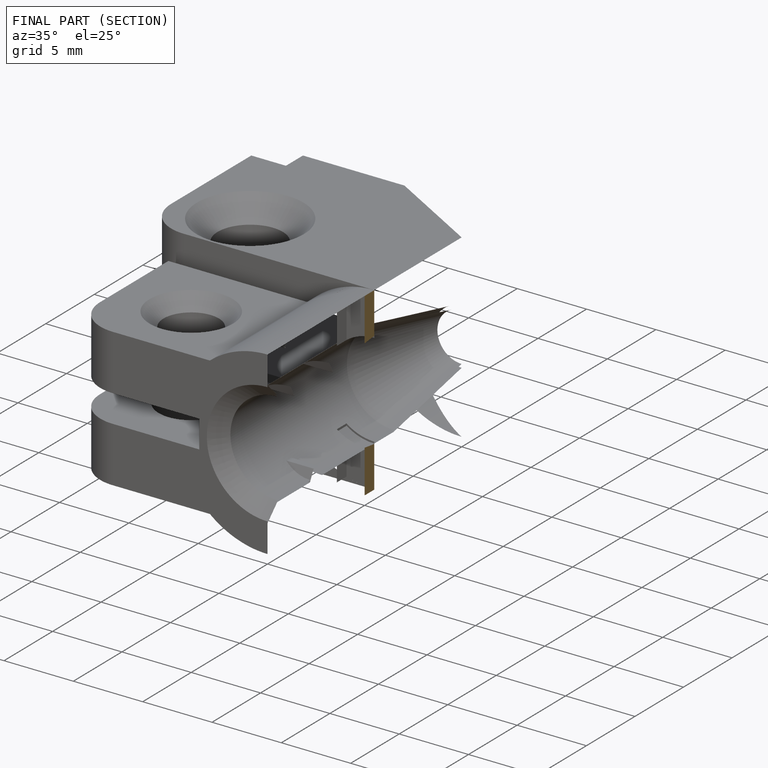
[diagram: finished part — half-section view (interior)]
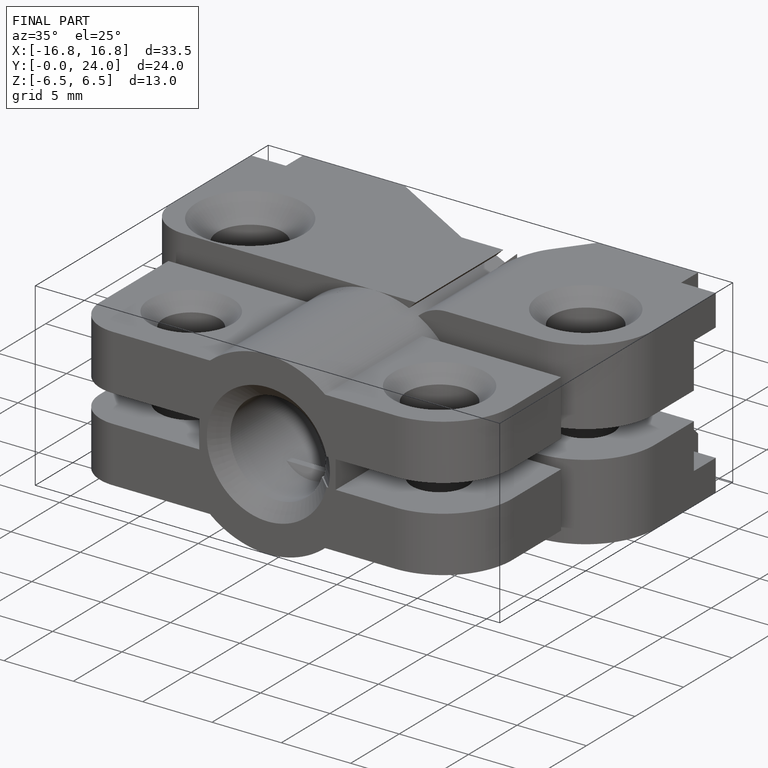
[diagram: finished part — iso view with bounding-box wireframe]
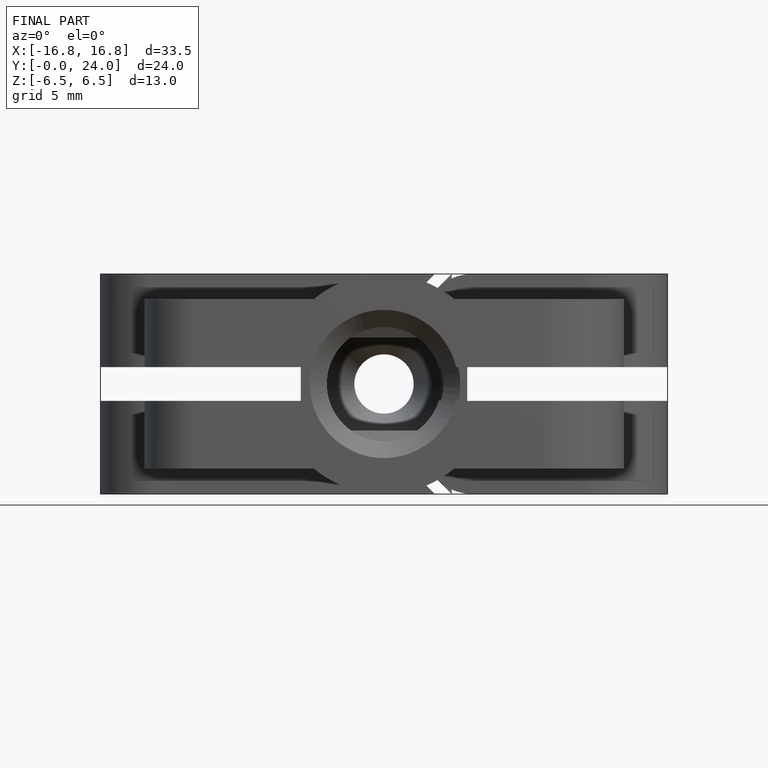
[diagram: finished part — front view with bounding-box wireframe]
